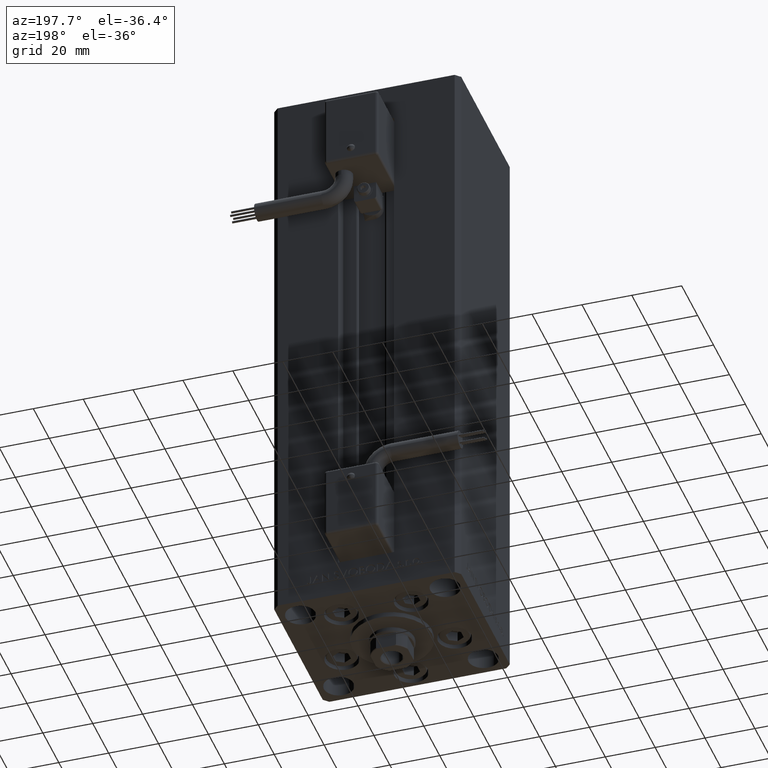
[diagram: clean part render]
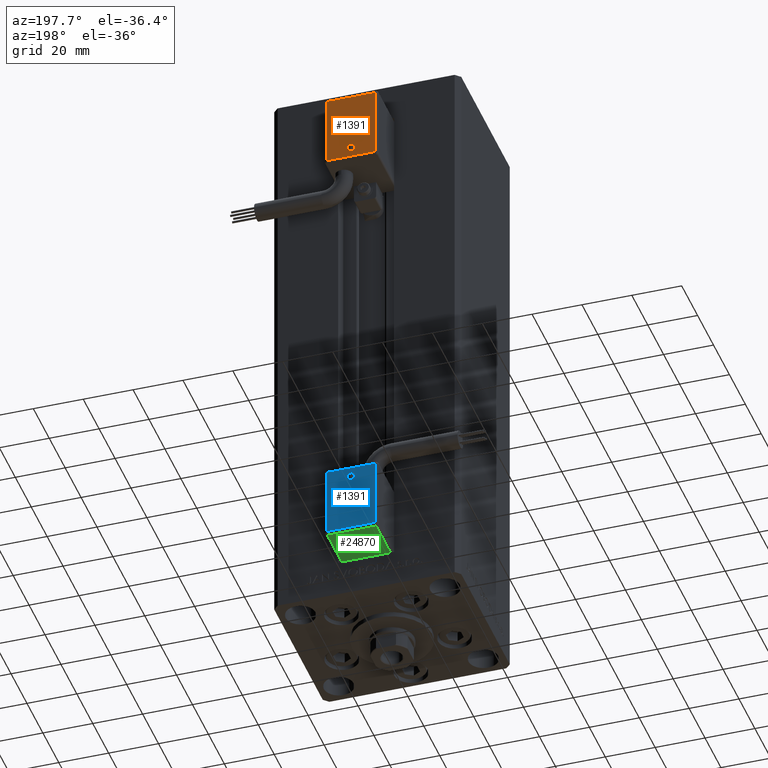
[diagram: same view with three faces highlighted in distinct colors, each labeled with its STEP entity id]
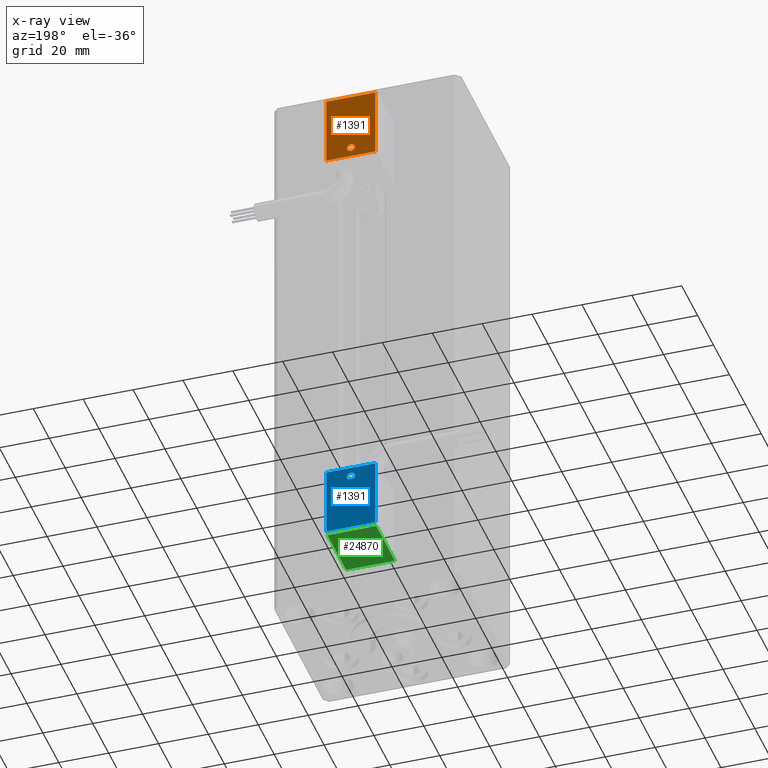
[diagram: x-ray of the same camera — body ghosted, the three highlighted faces saturated]
A machine part, auxiliary view with three faces highlighted in distinct colors.
The next image is the same camera in x-ray (body ghosted, the three faces saturated) — at least one of them is partly hidden behind the body in this view.
Their STEP definitions:

[orange] entity #1391 — the highlighted planar face has unit normal (0, 1, 0).
#1333 = CARTESIAN_POINT ( 'NONE',  ( 1.157444300081134802E-14, 51.60000000000000142, -51.59426053914221200 ) ) ;
#1391 = ADVANCED_FACE ( 'NONE', ( #44266, #12021 ), #11757, .T. ) ;
#1778 = CARTESIAN_POINT ( 'NONE',  ( -9.799999999999998934, 51.60000000000000142, -54.00000000000000000 ) ) ;
#2123 = ORIENTED_EDGE ( 'NONE', *, *, #7288, .T. ) ;
#3391 = DIRECTION ( 'NONE',  ( 0.000000000000000000, 0.000000000000000000, 1.000000000000000000 ) ) ;
#3662 = VECTOR ( 'NONE', #25048, 1000.000000000000000 ) ;
#3926 = CARTESIAN_POINT ( 'NONE',  ( -9.799999999999998934, 51.59999999999999432, -26.00000000000000000 ) ) ;
#4801 = VERTEX_POINT ( 'NONE', #16574 ) ;
#4982 = VERTEX_POINT ( 'NONE', #1333 ) ;
#6774 = VERTEX_POINT ( 'NONE', #33611 ) ;
#7288 = EDGE_CURVE ( 'NONE', #31229, #51304, #8940, .T. ) ;
#7560 = EDGE_LOOP ( 'NONE', ( #27415, #8148 ) ) ;
#7637 = CARTESIAN_POINT ( 'NONE',  ( 1.122044604924999863E-14, 51.60000000000000142, -50.00000000000000000 ) ) ;
#7853 = LINE ( 'NONE', #15508, #36069 ) ;
#8148 = ORIENTED_EDGE ( 'NONE', *, *, #35722, .T. ) ;
#8940 = LINE ( 'NONE', #3926, #3662 ) ;
#11342 = CARTESIAN_POINT ( 'NONE',  ( 1.122044604924999863E-14, 51.60000000000000142, -50.00000000000000000 ) ) ;
#11485 = DIRECTION ( 'NONE',  ( -0.000000000000000000, 1.000000000000000000, 2.478176394252581634E-16 ) ) ;
#11757 = PLANE ( 'NONE',  #44853 ) ;
#11777 = CARTESIAN_POINT ( 'NONE',  ( 9.799999999999998934, 51.60000000000000142, -54.00000000000000000 ) ) ;
#12021 = FACE_OUTER_BOUND ( 'NONE', #39567, .T. ) ;
#13722 = CARTESIAN_POINT ( 'NONE',  ( 1.067120849106190655E-14, 51.60000000000000142, -48.40573946085779511 ) ) ;
#15508 = CARTESIAN_POINT ( 'NONE',  ( 9.799999999999998934, 51.59999999999999432, -26.00000000000000000 ) ) ;
#16574 = CARTESIAN_POINT ( 'NONE',  ( 9.799999999999998934, 51.60000000000000142, -54.00000000000000000 ) ) ;
#19472 = EDGE_CURVE ( 'NONE', #51304, #4801, #7853, .T. ) ;
#20033 = VECTOR ( 'NONE', #39519, 1000.000000000000000 ) ;
#24221 = EDGE_CURVE ( 'NONE', #4801, #6774, #51433, .T. ) ;
#24431 = DIRECTION ( 'NONE',  ( 0.000000000000000000, -2.478176394252581634E-16, 1.000000000000000000 ) ) ;
#24747 = CIRCLE ( 'NONE', #48388, 1.594260539142210220 ) ;
#25048 = DIRECTION ( 'NONE',  ( 1.000000000000000000, 0.000000000000000000, 0.000000000000000000 ) ) ;
#25835 = DIRECTION ( 'NONE',  ( 0.000000000000000000, -2.478176394252581634E-16, 1.000000000000000000 ) ) ;
#27415 = ORIENTED_EDGE ( 'NONE', *, *, #50040, .T. ) ;
#28152 = ORIENTED_EDGE ( 'NONE', *, *, #19472, .T. ) ;
#30067 = LINE ( 'NONE', #1778, #38937 ) ;
#31039 = AXIS2_PLACEMENT_3D ( 'NONE', #11342, #39078, #51533 ) ;
#31229 = VERTEX_POINT ( 'NONE', #32596 ) ;
#31575 = CARTESIAN_POINT ( 'NONE',  ( -2.664535259099999904E-33, 51.59999999999998721, 1.277460843040079085E-14 ) ) ;
#32596 = CARTESIAN_POINT ( 'NONE',  ( -9.799999999999998934, 51.59999999999999432, -26.00000000000000000 ) ) ;
#33611 = CARTESIAN_POINT ( 'NONE',  ( -9.799999999999998934, 51.60000000000000142, -54.00000000000000000 ) ) ;
#35048 = ORIENTED_EDGE ( 'NONE', *, *, #47456, .T. ) ;
#35097 = DIRECTION ( 'NONE',  ( 0.000000000000000000, -1.000000000000000000, -2.478176394252581634E-16 ) ) ;
#35722 = EDGE_CURVE ( 'NONE', #49830, #4982, #46210, .T. ) ;
#36069 = VECTOR ( 'NONE', #48036, 1000.000000000000000 ) ;
#38937 = VECTOR ( 'NONE', #25835, 1000.000000000000000 ) ;
#39078 = DIRECTION ( 'NONE',  ( 0.000000000000000000, -1.000000000000000000, -2.478176394252581634E-16 ) ) ;
#39519 = DIRECTION ( 'NONE',  ( -1.000000000000000000, 0.000000000000000000, 0.000000000000000000 ) ) ;
#39567 = EDGE_LOOP ( 'NONE', ( #2123, #28152, #48759, #35048 ) ) ;
#44266 = FACE_BOUND ( 'NONE', #7560, .T. ) ;
#44853 = AXIS2_PLACEMENT_3D ( 'NONE', #31575, #11485, #24431 ) ;
#46210 = CIRCLE ( 'NONE', #31039, 1.594260539142210220 ) ;
#47456 = EDGE_CURVE ( 'NONE', #6774, #31229, #30067, .T. ) ;
#48036 = DIRECTION ( 'NONE',  ( 0.000000000000000000, 2.478176394252581634E-16, -1.000000000000000000 ) ) ;
#48388 = AXIS2_PLACEMENT_3D ( 'NONE', #7637, #35097, #3391 ) ;
#48759 = ORIENTED_EDGE ( 'NONE', *, *, #24221, .T. ) ;
#49830 = VERTEX_POINT ( 'NONE', #13722 ) ;
#50040 = EDGE_CURVE ( 'NONE', #4982, #49830, #24747, .T. ) ;
#51304 = VERTEX_POINT ( 'NONE', #51720 ) ;
#51433 = LINE ( 'NONE', #11777, #20033 ) ;
#51533 = DIRECTION ( 'NONE',  ( 0.000000000000000000, 0.000000000000000000, 1.000000000000000000 ) ) ;
#51720 = CARTESIAN_POINT ( 'NONE',  ( 9.799999999999998934, 51.59999999999999432, -26.00000000000000000 ) ) ;

[blue] entity #1391 — the highlighted planar face has unit normal (0, 1, -0).
#1333 = CARTESIAN_POINT ( 'NONE',  ( 1.157444300081134802E-14, 51.60000000000000142, -51.59426053914221200 ) ) ;
#1391 = ADVANCED_FACE ( 'NONE', ( #44266, #12021 ), #11757, .T. ) ;
#1778 = CARTESIAN_POINT ( 'NONE',  ( -9.799999999999998934, 51.60000000000000142, -54.00000000000000000 ) ) ;
#2123 = ORIENTED_EDGE ( 'NONE', *, *, #7288, .T. ) ;
#3391 = DIRECTION ( 'NONE',  ( 0.000000000000000000, 0.000000000000000000, 1.000000000000000000 ) ) ;
#3662 = VECTOR ( 'NONE', #25048, 1000.000000000000000 ) ;
#3926 = CARTESIAN_POINT ( 'NONE',  ( -9.799999999999998934, 51.59999999999999432, -26.00000000000000000 ) ) ;
#4801 = VERTEX_POINT ( 'NONE', #16574 ) ;
#4982 = VERTEX_POINT ( 'NONE', #1333 ) ;
#6774 = VERTEX_POINT ( 'NONE', #33611 ) ;
#7288 = EDGE_CURVE ( 'NONE', #31229, #51304, #8940, .T. ) ;
#7560 = EDGE_LOOP ( 'NONE', ( #27415, #8148 ) ) ;
#7637 = CARTESIAN_POINT ( 'NONE',  ( 1.122044604924999863E-14, 51.60000000000000142, -50.00000000000000000 ) ) ;
#7853 = LINE ( 'NONE', #15508, #36069 ) ;
#8148 = ORIENTED_EDGE ( 'NONE', *, *, #35722, .T. ) ;
#8940 = LINE ( 'NONE', #3926, #3662 ) ;
#11342 = CARTESIAN_POINT ( 'NONE',  ( 1.122044604924999863E-14, 51.60000000000000142, -50.00000000000000000 ) ) ;
#11485 = DIRECTION ( 'NONE',  ( -0.000000000000000000, 1.000000000000000000, 2.478176394252581634E-16 ) ) ;
#11757 = PLANE ( 'NONE',  #44853 ) ;
#11777 = CARTESIAN_POINT ( 'NONE',  ( 9.799999999999998934, 51.60000000000000142, -54.00000000000000000 ) ) ;
#12021 = FACE_OUTER_BOUND ( 'NONE', #39567, .T. ) ;
#13722 = CARTESIAN_POINT ( 'NONE',  ( 1.067120849106190655E-14, 51.60000000000000142, -48.40573946085779511 ) ) ;
#15508 = CARTESIAN_POINT ( 'NONE',  ( 9.799999999999998934, 51.59999999999999432, -26.00000000000000000 ) ) ;
#16574 = CARTESIAN_POINT ( 'NONE',  ( 9.799999999999998934, 51.60000000000000142, -54.00000000000000000 ) ) ;
#19472 = EDGE_CURVE ( 'NONE', #51304, #4801, #7853, .T. ) ;
#20033 = VECTOR ( 'NONE', #39519, 1000.000000000000000 ) ;
#24221 = EDGE_CURVE ( 'NONE', #4801, #6774, #51433, .T. ) ;
#24431 = DIRECTION ( 'NONE',  ( 0.000000000000000000, -2.478176394252581634E-16, 1.000000000000000000 ) ) ;
#24747 = CIRCLE ( 'NONE', #48388, 1.594260539142210220 ) ;
#25048 = DIRECTION ( 'NONE',  ( 1.000000000000000000, 0.000000000000000000, 0.000000000000000000 ) ) ;
#25835 = DIRECTION ( 'NONE',  ( 0.000000000000000000, -2.478176394252581634E-16, 1.000000000000000000 ) ) ;
#27415 = ORIENTED_EDGE ( 'NONE', *, *, #50040, .T. ) ;
#28152 = ORIENTED_EDGE ( 'NONE', *, *, #19472, .T. ) ;
#30067 = LINE ( 'NONE', #1778, #38937 ) ;
#31039 = AXIS2_PLACEMENT_3D ( 'NONE', #11342, #39078, #51533 ) ;
#31229 = VERTEX_POINT ( 'NONE', #32596 ) ;
#31575 = CARTESIAN_POINT ( 'NONE',  ( -2.664535259099999904E-33, 51.59999999999998721, 1.277460843040079085E-14 ) ) ;
#32596 = CARTESIAN_POINT ( 'NONE',  ( -9.799999999999998934, 51.59999999999999432, -26.00000000000000000 ) ) ;
#33611 = CARTESIAN_POINT ( 'NONE',  ( -9.799999999999998934, 51.60000000000000142, -54.00000000000000000 ) ) ;
#35048 = ORIENTED_EDGE ( 'NONE', *, *, #47456, .T. ) ;
#35097 = DIRECTION ( 'NONE',  ( 0.000000000000000000, -1.000000000000000000, -2.478176394252581634E-16 ) ) ;
#35722 = EDGE_CURVE ( 'NONE', #49830, #4982, #46210, .T. ) ;
#36069 = VECTOR ( 'NONE', #48036, 1000.000000000000000 ) ;
#38937 = VECTOR ( 'NONE', #25835, 1000.000000000000000 ) ;
#39078 = DIRECTION ( 'NONE',  ( 0.000000000000000000, -1.000000000000000000, -2.478176394252581634E-16 ) ) ;
#39519 = DIRECTION ( 'NONE',  ( -1.000000000000000000, 0.000000000000000000, 0.000000000000000000 ) ) ;
#39567 = EDGE_LOOP ( 'NONE', ( #2123, #28152, #48759, #35048 ) ) ;
#44266 = FACE_BOUND ( 'NONE', #7560, .T. ) ;
#44853 = AXIS2_PLACEMENT_3D ( 'NONE', #31575, #11485, #24431 ) ;
#46210 = CIRCLE ( 'NONE', #31039, 1.594260539142210220 ) ;
#47456 = EDGE_CURVE ( 'NONE', #6774, #31229, #30067, .T. ) ;
#48036 = DIRECTION ( 'NONE',  ( 0.000000000000000000, 2.478176394252581634E-16, -1.000000000000000000 ) ) ;
#48388 = AXIS2_PLACEMENT_3D ( 'NONE', #7637, #35097, #3391 ) ;
#48759 = ORIENTED_EDGE ( 'NONE', *, *, #24221, .T. ) ;
#49830 = VERTEX_POINT ( 'NONE', #13722 ) ;
#50040 = EDGE_CURVE ( 'NONE', #4982, #49830, #24747, .T. ) ;
#51304 = VERTEX_POINT ( 'NONE', #51720 ) ;
#51433 = LINE ( 'NONE', #11777, #20033 ) ;
#51533 = DIRECTION ( 'NONE',  ( 0.000000000000000000, 0.000000000000000000, 1.000000000000000000 ) ) ;
#51720 = CARTESIAN_POINT ( 'NONE',  ( 9.799999999999998934, 51.59999999999999432, -26.00000000000000000 ) ) ;

[green] entity #24870 — the highlighted planar face has unit normal (-0, 0, 1).
#248 = LINE ( 'NONE', #52096, #16234 ) ;
#4889 = AXIS2_PLACEMENT_3D ( 'NONE', #46281, #10067, #9309 ) ;
#5170 = EDGE_CURVE ( 'NONE', #39576, #52265, #248, .T. ) ;
#5843 = PLANE ( 'NONE',  #4889 ) ;
#7299 = ORIENTED_EDGE ( 'NONE', *, *, #5170, .T. ) ;
#9309 = DIRECTION ( 'NONE',  ( 0.000000000000000000, -1.000000000000000000, -1.400000000000000069E-16 ) ) ;
#10067 = DIRECTION ( 'NONE',  ( 2.220446049250000002E-16, 1.400000000000000069E-16, -1.000000000000000000 ) ) ;
#10387 = VECTOR ( 'NONE', #36755, 1000.000000000000000 ) ;
#12447 = CARTESIAN_POINT ( 'NONE',  ( -9.799999999999998934, 51.50000000000000000, -25.00000000000000000 ) ) ;
#12683 = EDGE_CURVE ( 'NONE', #33996, #13465, #12697, .T. ) ;
#12697 = LINE ( 'NONE', #12447, #26492 ) ;
#13465 = VERTEX_POINT ( 'NONE', #20894 ) ;
#16234 = VECTOR ( 'NONE', #48125, 1000.000000000000000 ) ;
#19516 = ORIENTED_EDGE ( 'NONE', *, *, #12683, .T. ) ;
#20894 = CARTESIAN_POINT ( 'NONE',  ( -9.799999999999998934, 27.00000000000000000, -25.00000000000000000 ) ) ;
#24870 = ADVANCED_FACE ( 'NONE', ( #38331 ), #5843, .F. ) ;
#26492 = VECTOR ( 'NONE', #49679, 1000.000000000000000 ) ;
#27888 = CARTESIAN_POINT ( 'NONE',  ( 9.799999999999998934, 50.50000000000000000, -25.00000000000000000 ) ) ;
#33996 = VERTEX_POINT ( 'NONE', #34739 ) ;
#34120 = EDGE_CURVE ( 'NONE', #52265, #33996, #40300, .T. ) ;
#34739 = CARTESIAN_POINT ( 'NONE',  ( -9.799999999999998934, 50.50000000000000000, -25.00000000000000000 ) ) ;
#36755 = DIRECTION ( 'NONE',  ( 1.000000000000000000, 0.000000000000000000, 2.220446049250000002E-16 ) ) ;
#38120 = ORIENTED_EDGE ( 'NONE', *, *, #34120, .T. ) ;
#38331 = FACE_OUTER_BOUND ( 'NONE', #43741, .T. ) ;
#39576 = VERTEX_POINT ( 'NONE', #51376 ) ;
#40040 = CARTESIAN_POINT ( 'NONE',  ( 10.80000000000000071, 50.50000000000000000, -25.00000000000000000 ) ) ;
#40300 = LINE ( 'NONE', #40040, #50478 ) ;
#40472 = CARTESIAN_POINT ( 'NONE',  ( 10.80000000000000071, 27.00000000000000000, -25.00000000000000000 ) ) ;
#40477 = ORIENTED_EDGE ( 'NONE', *, *, #50789, .T. ) ;
#40727 = LINE ( 'NONE', #40472, #10387 ) ;
#43741 = EDGE_LOOP ( 'NONE', ( #19516, #40477, #7299, #38120 ) ) ;
#45301 = DIRECTION ( 'NONE',  ( -1.000000000000000000, 0.000000000000000000, -2.220446049250000002E-16 ) ) ;
#46281 = CARTESIAN_POINT ( 'NONE',  ( 10.80000000000000071, 51.50000000000000000, -25.00000000000000000 ) ) ;
#48125 = DIRECTION ( 'NONE',  ( -3.108624468950000014E-32, 1.000000000000000000, 1.400000000000000069E-16 ) ) ;
#49679 = DIRECTION ( 'NONE',  ( 3.108624468950000014E-32, -1.000000000000000000, -1.400000000000000069E-16 ) ) ;
#50478 = VECTOR ( 'NONE', #45301, 1000.000000000000000 ) ;
#50789 = EDGE_CURVE ( 'NONE', #13465, #39576, #40727, .T. ) ;
#51376 = CARTESIAN_POINT ( 'NONE',  ( 9.799999999999998934, 27.00000000000000000, -25.00000000000000000 ) ) ;
#52096 = CARTESIAN_POINT ( 'NONE',  ( 9.799999999999998934, 51.50000000000000000, -25.00000000000000000 ) ) ;
#52265 = VERTEX_POINT ( 'NONE', #27888 ) ;